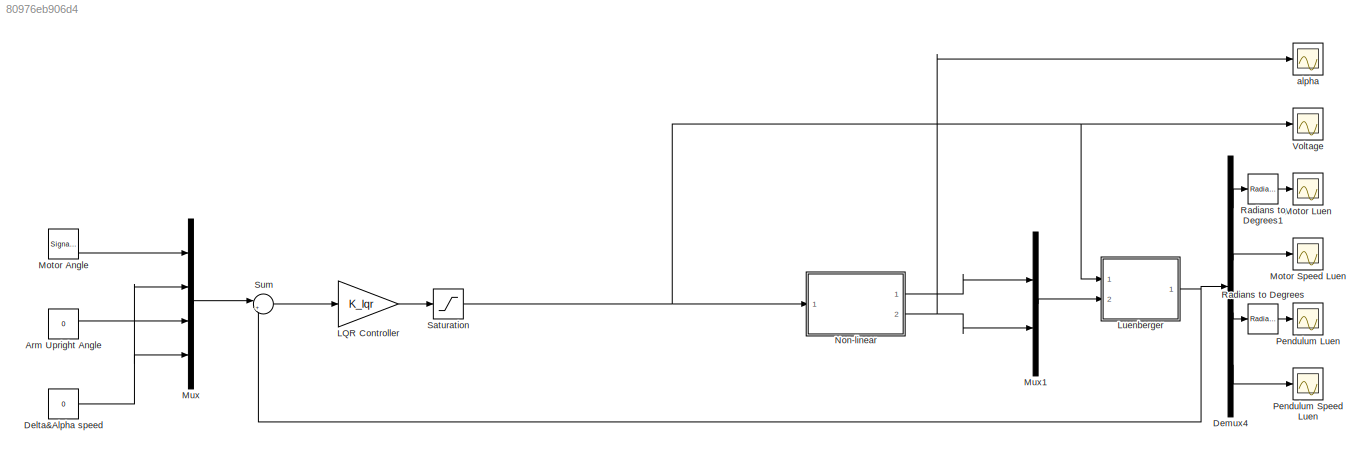
MODEL slx_80976eb906d4
KIND model
CONFIG AbsTol = auto
CONFIG EnableMultiTasking = on
CONFIG FixedStep = 0.002
CONFIG MaxStep = auto
CONFIG MinStep = auto
CONFIG RelTol = 1e-3
CONFIG SampleTimeConstraint = Unconstrained
CONFIG SolverName = FixedStepAuto
CONFIG StartTime = 0.0
CONFIG StopTime = 100
BLOCK [Constant] Arm Upright Angle
  Value = 0
BLOCK [Constant] Delta&Alpha speed
  Value = 0
BLOCK [Demux] Demux4
  Ports = [1, 4]
BLOCK [Gain] LQR Controller
  Gain = K_lqr
  Multiplication = Matrix(K*u) (u vector)
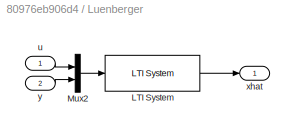
BLOCK [SubSystem] Luenberger
  Ports = [2, 1]
  RequestExecContextInheritance = off
BLOCK [Reference] Luenberger/LTI System  REF=cstblocks/LTI System
  Ports = [1, 1]
  SourceBlock = cstblocks/LTI System
  SourceProductBaseCode = CT
  SourceType = LTI Block
BLOCK [Mux] Luenberger/Mux2
  DisplayOption = bar
  Inputs = 2
  Ports = [2, 1]
BLOCK [Inport] Luenberger/u
BLOCK [Outport] Luenberger/xhat
BLOCK [Inport] Luenberger/y
  Port = 2
BLOCK [SignalGenerator] Motor Angle
  Amplitude = 30/180*pi
  Frequency = 0.2
  Ports = [0, 1]
  WaveForm = square
BLOCK [Scope] Motor Luen
  Floating = off
  NumInputPorts = 1
  Ports = [1]
  ScopeSpecificationString = Simulink.scopes.TimeScopeBlockCfg('CurrentConfiguration', extmgr.ConfigurationSet(extmgr.Configuration('Core','General UI',true),extmgr.Configuration('Core','Source UI',true),extmgr.Configuration('Sources','WiredSimulink',true,'DataLoggingVariableName','ScopeData3'),extmgr.Configuration('Visuals','Time Domain',true,'SerializedDisplays',{struct('MinYLimReal','-117.96754','MaxYLimReal','53.76747','Y...<+1501ch>
BLOCK [Scope] Motor Speed Luen
  Floating = off
  NumInputPorts = 1
  Ports = [1]
  ScopeSpecificationString = Simulink.scopes.TimeScopeBlockCfg('CurrentConfiguration', extmgr.ConfigurationSet(extmgr.Configuration('Core','General UI',true),extmgr.Configuration('Core','Source UI',true),extmgr.Configuration('Sources','WiredSimulink',true,'DataLoggingVariableName','ScopeData4'),extmgr.Configuration('Visuals','Time Domain',true,'SerializedDisplays',{struct('MinYLimReal','-24.79671','MaxYLimReal','17.71257','YL...<+1402ch>
BLOCK [Mux] Mux
  DisplayOption = bar
  Ports = [4, 1]
BLOCK [Mux] Mux1
  DisplayOption = bar
  Inputs = 2
  Ports = [2, 1]
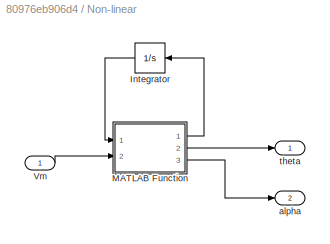
BLOCK [SubSystem] Non-linear
  Ports = [1, 2]
  RequestExecContextInheritance = off
BLOCK [Integrator] Non-linear/Integrator
  InitialCondition = [0 0 pi/6 0]
  Ports = [1, 1]
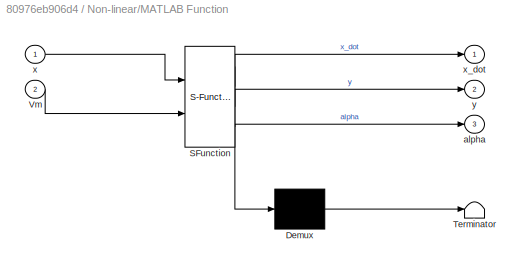
BLOCK [SubSystem] Non-linear/MATLAB Function
  ErrorFcn = Stateflow.Translate.translate
  PermitHierarchicalResolution = ExplicitOnly
  Ports = [2, 3]
  RequestExecContextInheritance = off
  SFBlockType = MATLAB Function
  TreatAsAtomicUnit = on
BLOCK [Demux] Non-linear/MATLAB Function/ Demux 
  Outputs = 1
  Ports = [1, 1]
BLOCK [S-Function] Non-linear/MATLAB Function/ SFunction 
  EnableBusSupport = on
  FunctionName = sf_sfun
  PortCounts = [2 4]
  Ports = [2, 4]
  SFcnIsStateOwnerBlock = off
  SFunctionDeploymentMode = off
  Tag = Stateflow S-Function 2
BLOCK [Terminator] Non-linear/MATLAB Function/ Terminator 
BLOCK [Inport] Non-linear/MATLAB Function/Vm
  Port = 2
BLOCK [Outport] Non-linear/MATLAB Function/alpha
  Port = 3
BLOCK [Inport] Non-linear/MATLAB Function/x
BLOCK [Outport] Non-linear/MATLAB Function/x_dot
BLOCK [Outport] Non-linear/MATLAB Function/y
  Port = 2
BLOCK [Inport] Non-linear/Vm
BLOCK [Outport] Non-linear/alpha
  Port = 2
BLOCK [Outport] Non-linear/theta
BLOCK [Scope] Pendulum Luen
  Floating = off
  NumInputPorts = 1
  Ports = [1]
  ScopeSpecificationString = Simulink.scopes.TimeScopeBlockCfg('CurrentConfiguration', extmgr.ConfigurationSet(extmgr.Configuration('Core','General UI',true),extmgr.Configuration('Core','Source UI',true),extmgr.Configuration('Sources','WiredSimulink',true,'DataLoggingVariableName','ScopeData1'),extmgr.Configuration('Visuals','Time Domain',true,'SerializedDisplays',{struct('MinYLimReal','-30.331','MaxYLimReal','14.38547','YLab...<+1487ch>
BLOCK [Scope] Pendulum Speed Luen
  Floating = off
  NumInputPorts = 1
  Ports = [1]
  ScopeSpecificationString = Simulink.scopes.TimeScopeBlockCfg('CurrentConfiguration', extmgr.ConfigurationSet(extmgr.Configuration('Core','General UI',true),extmgr.Configuration('Core','Source UI',true),extmgr.Configuration('Sources','WiredSimulink',true,'DataLoggingVariableName','ScopeData2'),extmgr.Configuration('Visuals','Time Domain',true,'SerializedDisplays',{struct('MinYLimReal','-13.23239','MaxYLimReal','8.80777','YLa...<+1401ch>
BLOCK [Reference] Radians to Degrees  REF=simulink_extras/Transformations/Radians
to Degrees
  Ports = [1, 1]
  SourceBlock = simulink_extras/Transformations/Radians\nto Degrees
  SourceProductBaseCode = SL
  SourceType = RadiansToDegrees
BLOCK [Reference] Radians to Degrees1  REF=simulink_extras/Transformations/Radians
to Degrees
  Ports = [1, 1]
  SourceBlock = simulink_extras/Transformations/Radians\nto Degrees
  SourceProductBaseCode = SL
  SourceType = RadiansToDegrees
BLOCK [Saturate] Saturation
  LowerLimit = -24
  UpperLimit = 24
BLOCK [Sum] Sum
  Inputs = |+-
  Ports = [2, 1]
BLOCK [Scope] Voltage
  Floating = off
  NumInputPorts = 1
  Ports = [1]
  ScopeSpecificationString = Simulink.scopes.TimeScopeBlockCfg('CurrentConfiguration', extmgr.ConfigurationSet(extmgr.Configuration('Core','General UI',true),extmgr.Configuration('Core','Source UI',true),extmgr.Configuration('Sources','WiredSimulink',true),extmgr.Configuration('Visuals','Time Domain',true,'SerializedDisplays',{struct('MinYLimReal','-28.38652','MaxYLimReal','15.47869','YLabelReal','','MinYLimMag','0.00000','Ma...<+1367ch>
BLOCK [Scope] alpha
  Floating = off
  NumInputPorts = 1
  Ports = [1]
  ScopeSpecificationString = Simulink.scopes.TimeScopeBlockCfg('CurrentConfiguration', extmgr.ConfigurationSet(extmgr.Configuration('Core','General UI',true),extmgr.Configuration('Core','Source UI',true),extmgr.Configuration('Sources','WiredSimulink',true,'DataLoggingVariableName','ScopeData5'),extmgr.Configuration('Visuals','Time Domain',true,'SerializedDisplays',{struct('MinYLimReal','3.0313','MaxYLimReal','5.0313','YLabelR...<+1386ch>
LINE Arm Upright Angle:1 -> Mux:3
NET Delta&Alpha speed:1 -> Mux:2, Mux:4
LINE Demux4:1 -> Radians to Degrees1:1
LINE Demux4:2 -> Motor Speed Luen:1
LINE Demux4:3 -> Radians to Degrees:1
LINE Demux4:4 -> Pendulum Speed Luen:1
LINE LQR Controller:1 -> Saturation:1
LINE Luenberger/LTI System:1 -> Luenberger/xhat:1
LINE Luenberger/Mux2:1 -> Luenberger/LTI System:1
LINE Luenberger/u:1 -> Luenberger/Mux2:1
LINE Luenberger/y:1 -> Luenberger/Mux2:2
NET Luenberger:1 -> Demux4:1, Sum:2
LINE Motor Angle:1 -> Mux:1
LINE Mux1:1 -> Luenberger:2
LINE Mux:1 -> Sum:1
LINE Non-linear/Integrator:1 -> Non-linear/MATLAB Function:1
LINE Non-linear/MATLAB Function:1 -> Non-linear/Integrator:1
LINE Non-linear/MATLAB Function:2 -> Non-linear/theta:1
LINE Non-linear/MATLAB Function:3 -> Non-linear/alpha:1
LINE Non-linear/Vm:1 -> Non-linear/MATLAB Function:2
LINE Non-linear:1 -> Mux1:1
NET Non-linear:2 -> Mux1:2, alpha:1
LINE Radians to Degrees1:1 -> Motor Luen:1
LINE Radians to Degrees:1 -> Pendulum Luen:1
NET Saturation:1 -> Luenberger:1, Non-linear:1, Voltage:1
LINE Sum:1 -> LQR Controller:1
note: NET lines group one-source signal fan-out (src -> all destinations, sorted); 1:1 wires keep LINE
CHART Non-linear/MATLAB Function states=1 transitions=1
  STATE_LABEL 'eML_blk_kernel()'
  STATE_LABEL 'SCRIPT:\nfunction [x_dot, y, alpha] = fcn(x, Vm)\nx_dot = [x(2); get_theta_ddot(x(1),x(2),x(3),x(4),Vm); x(4); get_alpha_ddot(x(1),x(2),x(3),x(4),Vm)];\ny = x(1);\nalpha = x(3);\nend\n\n\n\n'
CHART  states=0 transitions=0
